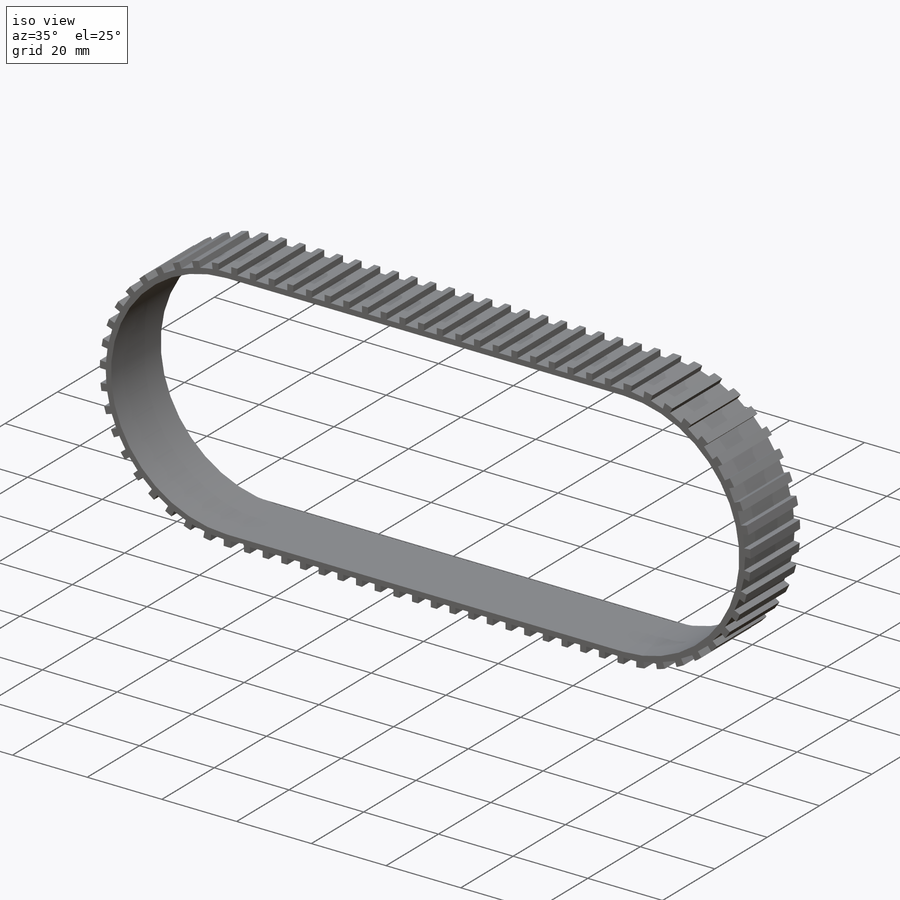
[diagram: iso view]
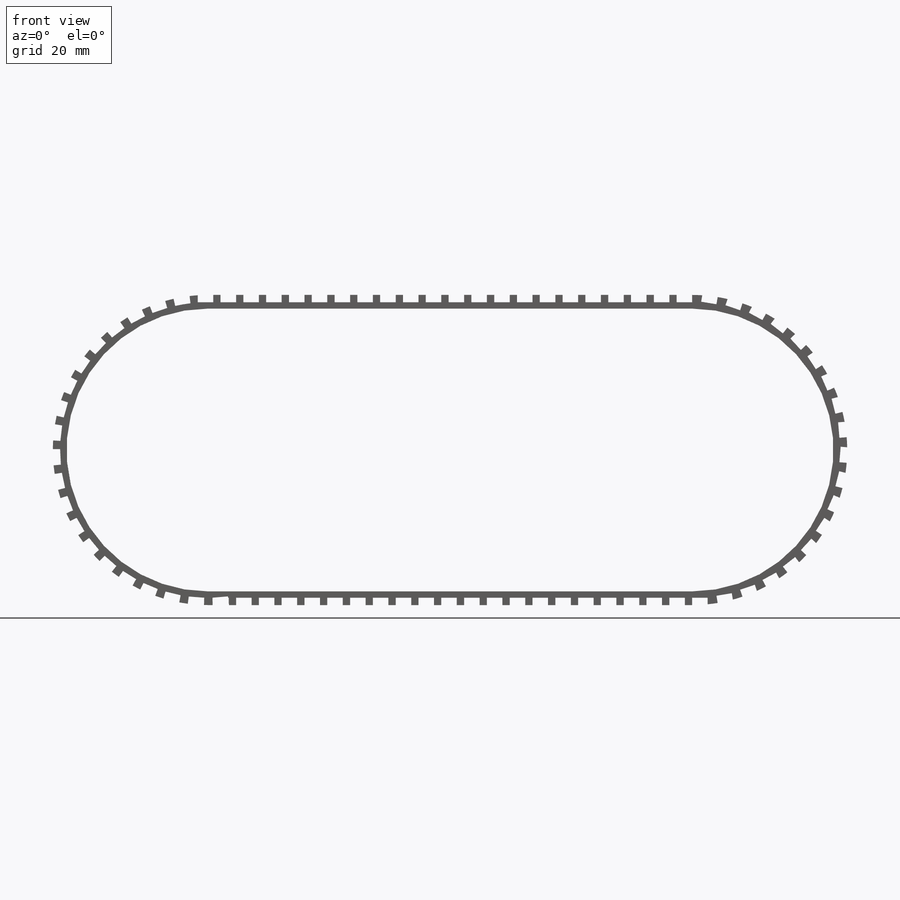
[diagram: front view]
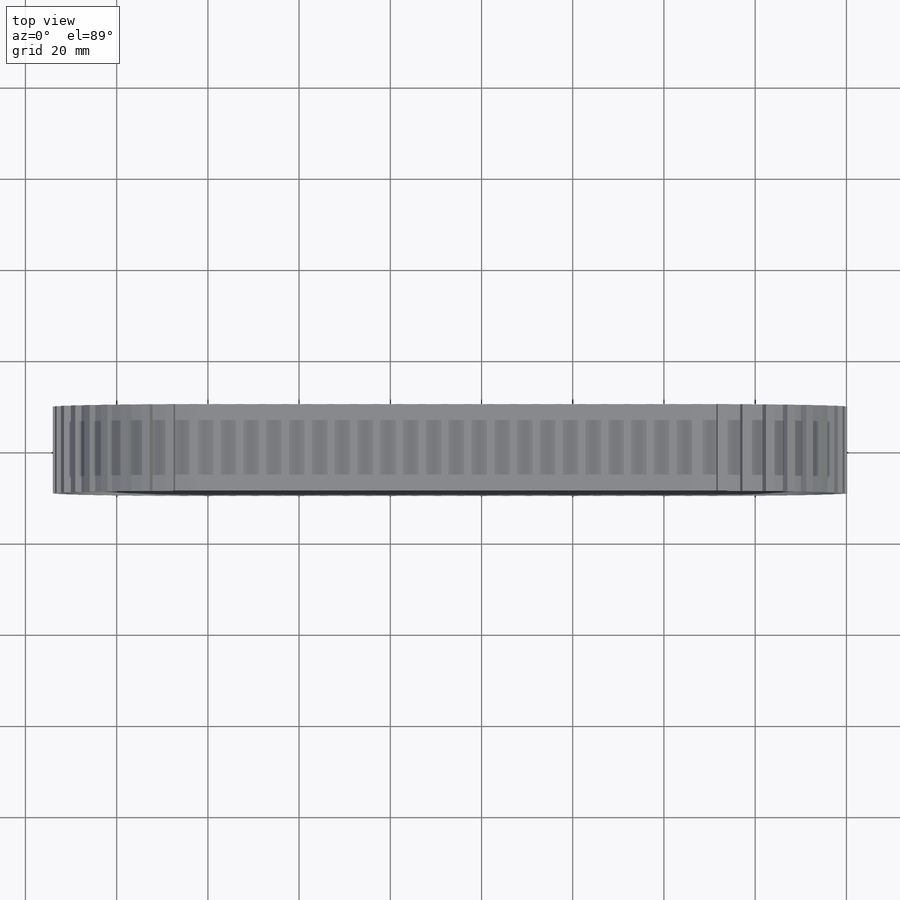
[diagram: top view]
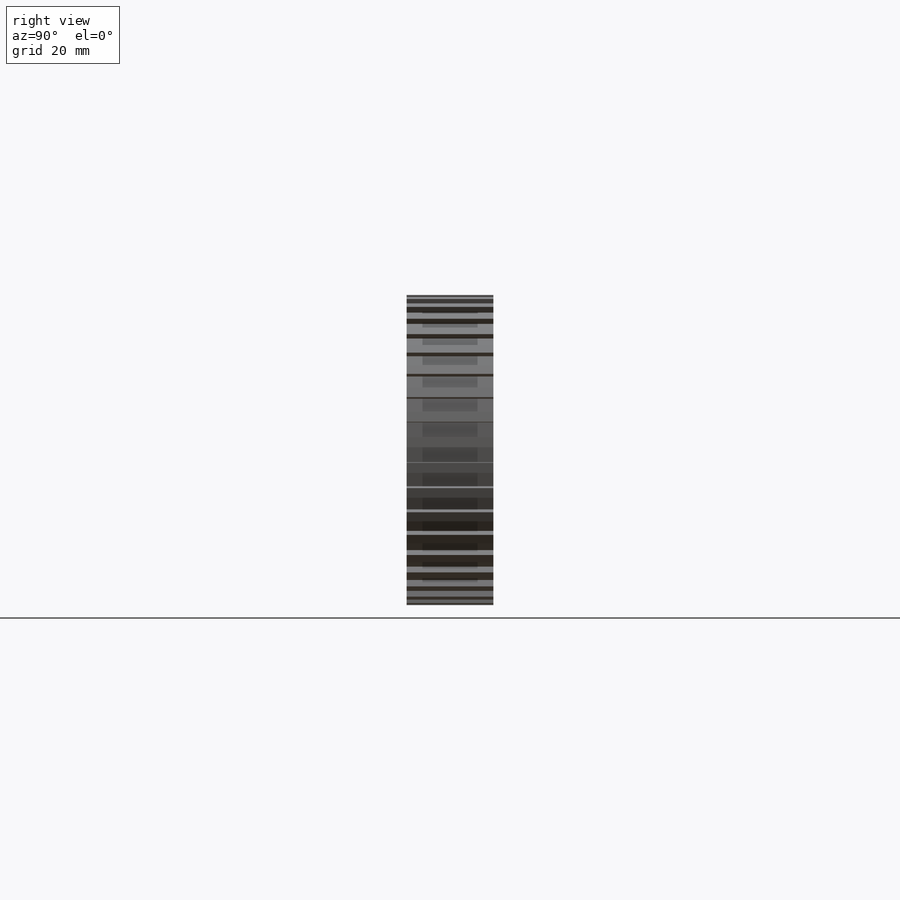
[diagram: right view]
SOLIDWORKS PART (.sldprt)
format: sldprt  version: not decoded by parser v0  size: 963,072 bytes
history: native  units: mm
features: sketch x3, cut_extrude x3, pattern_circular x2, pattern_linear x2, material x1 (+15 scaffold rows collapsed)
feature tree (26):
  scaffold x15  (default folders/planes/origin — collapsed)
  material  "Rubber"
  sketch  "Sketch3"  dims[c1.D1=1.6mm c1.D2=3.4mm c2.D1=1.6mm]
  cut_extrude  "Cut-Extrude1"  Depth=20mm
  pattern_circular  "CirPattern1"  Count=20 Angle=180deg
  pattern_linear  "LPattern1"  Count1=22 Count2=1 Spacing1=5mm Spacing2=50mm
  sketch  "Sketch4"  dims[D1=1.6mm D2=3.4mm D3=1.6mm]
  cut_extrude  "Cut-Extrude2"  Depth=20mm
  pattern_linear  "LPattern2"  Count1=21 Count2=1 Spacing1=5mm Spacing2=50mm
  sketch  "Sketch5"  dims[D2=1.6mm D3=3.4mm D1=1.4mm]
  cut_extrude  "Cut-Extrude3"  Depth=30mm
  pattern_circular  "CirPattern2"  Count=20 Angle=175deg
decode coverage: 10 of 10 modeling features carry decoded parameters
note: suppression state not decoded; provenance and decode notes live in map.json
